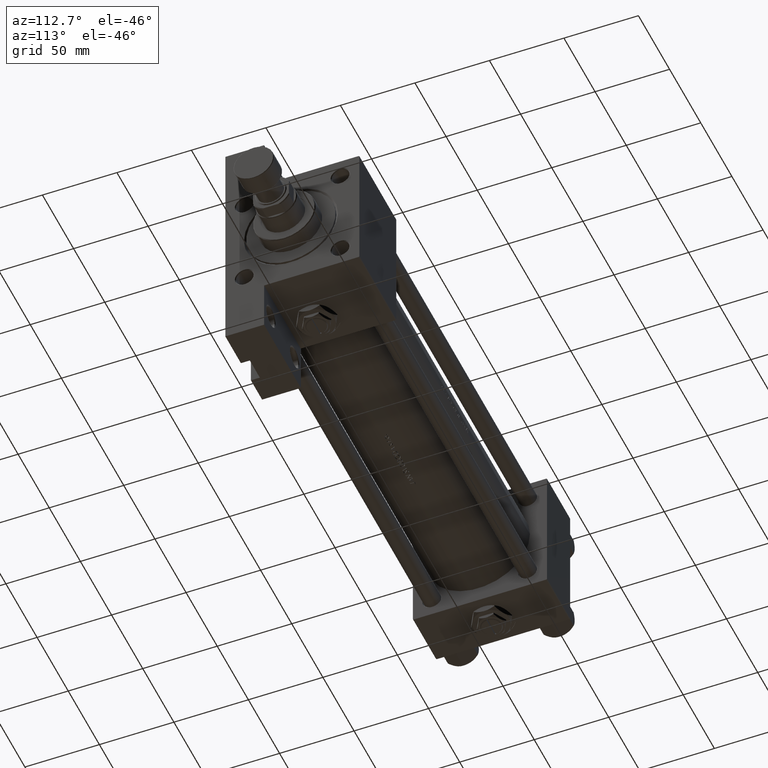
[diagram: clean part render]
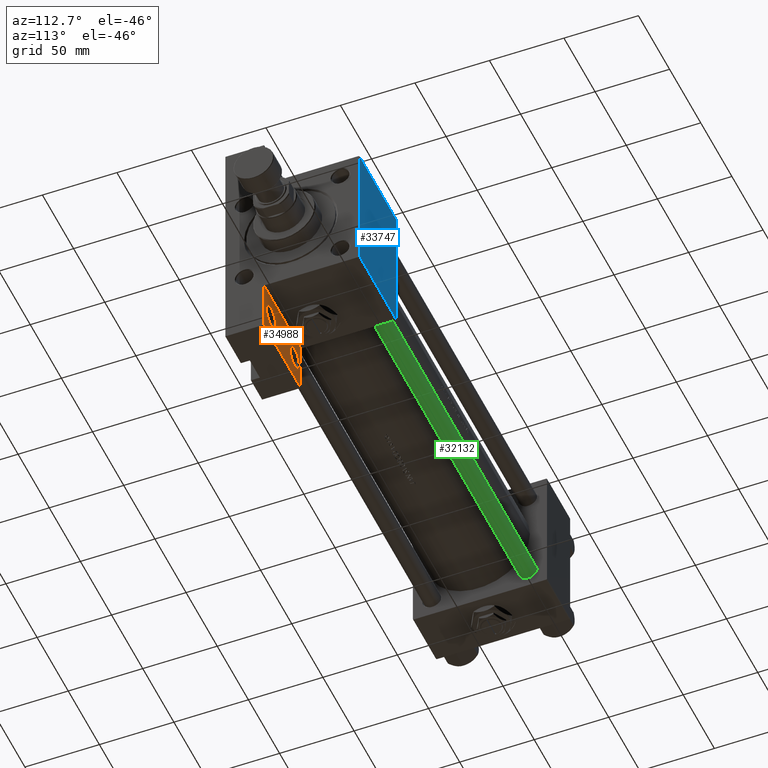
[diagram: same view with three faces highlighted in distinct colors, each labeled with its STEP entity id]
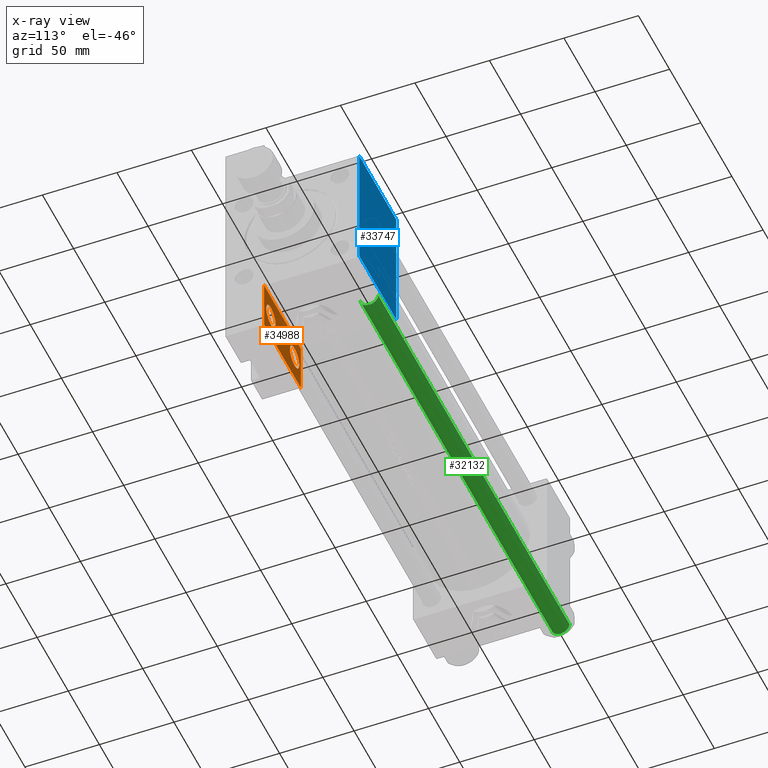
[diagram: x-ray of the same camera — body ghosted, the three highlighted faces saturated]
A machine part, auxiliary view with three faces highlighted in distinct colors.
The next image is the same camera in x-ray (body ghosted, the three faces saturated) — at least one of them is partly hidden behind the body in this view.
Their STEP definitions:

[orange] entity #34988 — the highlighted planar face has unit normal (0, 1, 0).
#86 = CARTESIAN_POINT ( 'NONE',  ( 278.9999999999999432, 79.99999999999995737, -19.00000000000000000 ) ) ;
#563 = EDGE_LOOP ( 'NONE', ( #20425, #5904 ) ) ;
#845 = VERTEX_POINT ( 'NONE', #42118 ) ;
#991 = EDGE_CURVE ( 'NONE', #11523, #37125, #22621, .T. ) ;
#2024 = DIRECTION ( 'NONE',  ( 0.000000000000000000, 0.000000000000000000, 1.000000000000000000 ) ) ;
#2047 = CARTESIAN_POINT ( 'NONE',  ( 326.9999999999999432, 62.00000000000000000, -19.00000000000000000 ) ) ;
#2672 = EDGE_CURVE ( 'NONE', #11731, #11315, #3400, .T. ) ;
#2769 = DIRECTION ( 'NONE',  ( 1.000000000000000000, 0.000000000000000000, 0.000000000000000000 ) ) ;
#2879 = EDGE_CURVE ( 'NONE', #43357, #31078, #6454, .T. ) ;
#3400 = LINE ( 'NONE', #41500, #29151 ) ;
#3595 = VECTOR ( 'NONE', #49797, 1000.000000000000000 ) ;
#4379 = EDGE_CURVE ( 'NONE', #4781, #845, #41717, .T. ) ;
#4781 = VERTEX_POINT ( 'NONE', #9927 ) ;
#5904 = ORIENTED_EDGE ( 'NONE', *, *, #2879, .T. ) ;
#6123 = LINE ( 'NONE', #22377, #27771 ) ;
#6454 = CIRCLE ( 'NONE', #7266, 7.499499999999992284 ) ;
#6478 = VECTOR ( 'NONE', #17371, 1000.000000000000000 ) ;
#6581 = DIRECTION ( 'NONE',  ( 1.000000000000000000, 0.000000000000000000, -0.000000000000000000 ) ) ;
#7266 = AXIS2_PLACEMENT_3D ( 'NONE', #33072, #13025, #44004 ) ;
#7539 = CARTESIAN_POINT ( 'NONE',  ( 334.4994999999999550, 62.00000000000000000, -19.00000000000000000 ) ) ;
#7785 = CARTESIAN_POINT ( 'NONE',  ( 281.5004999999999882, 62.00000000000002842, -19.00000000000000000 ) ) ;
#9927 = CARTESIAN_POINT ( 'NONE',  ( 337.9999999999999432, 79.99999999999998579, -19.00000000000000000 ) ) ;
#10382 = FACE_OUTER_BOUND ( 'NONE', #19868, .T. ) ;
#11315 = VERTEX_POINT ( 'NONE', #86 ) ;
#11523 = VERTEX_POINT ( 'NONE', #13274 ) ;
#11731 = VERTEX_POINT ( 'NONE', #19335 ) ;
#13025 = DIRECTION ( 'NONE',  ( -0.000000000000000000, -0.000000000000000000, -1.000000000000000000 ) ) ;
#13274 = CARTESIAN_POINT ( 'NONE',  ( 319.5004999999999882, 62.00000000000000000, -19.00000000000000000 ) ) ;
#14017 = CIRCLE ( 'NONE', #30256, 7.499499999999992284 ) ;
#14833 = ORIENTED_EDGE ( 'NONE', *, *, #26398, .F. ) ;
#15349 = AXIS2_PLACEMENT_3D ( 'NONE', #22084, #2024, #6581 ) ;
#16758 = EDGE_CURVE ( 'NONE', #31078, #43357, #14017, .T. ) ;
#17371 = DIRECTION ( 'NONE',  ( 0.000000000000000000, -1.000000000000000000, 0.000000000000000000 ) ) ;
#17477 = DIRECTION ( 'NONE',  ( 1.000000000000000000, 0.000000000000000000, 0.000000000000000000 ) ) ;
#17515 = ORIENTED_EDGE ( 'NONE', *, *, #4379, .F. ) ;
#17558 = DIRECTION ( 'NONE',  ( -1.000000000000000000, 1.411300455031978640E-15, -0.000000000000000000 ) ) ;
#18013 = CARTESIAN_POINT ( 'NONE',  ( 289.0000000000000000, 62.00000000000002842, -19.00000000000000000 ) ) ;
#18230 = EDGE_CURVE ( 'NONE', #11315, #4781, #34343, .T. ) ;
#18295 = DIRECTION ( 'NONE',  ( -0.000000000000000000, -0.000000000000000000, -1.000000000000000000 ) ) ;
#19335 = CARTESIAN_POINT ( 'NONE',  ( 278.9999999999999432, 45.00000000000001421, -18.99999999999997513 ) ) ;
#19868 = EDGE_LOOP ( 'NONE', ( #20016, #14833, #17515, #33597 ) ) ;
#20016 = ORIENTED_EDGE ( 'NONE', *, *, #2672, .F. ) ;
#20425 = ORIENTED_EDGE ( 'NONE', *, *, #16758, .T. ) ;
#22084 = CARTESIAN_POINT ( 'NONE',  ( 0.000000000000000000, 0.000000000000000000, -19.00000000000000000 ) ) ;
#22377 = CARTESIAN_POINT ( 'NONE',  ( 278.9999999999999432, 45.00000000000001421, -19.00000000000000000 ) ) ;
#22425 = CARTESIAN_POINT ( 'NONE',  ( 337.9999999999999432, 79.99999999999998579, -19.00000000000000000 ) ) ;
#22621 = CIRCLE ( 'NONE', #46101, 7.499499999999992284 ) ;
#26398 = EDGE_CURVE ( 'NONE', #845, #11731, #6123, .T. ) ;
#27771 = VECTOR ( 'NONE', #17558, 1000.000000000000000 ) ;
#28673 = DIRECTION ( 'NONE',  ( -0.000000000000000000, -0.000000000000000000, -1.000000000000000000 ) ) ;
#29151 = VECTOR ( 'NONE', #49844, 1000.000000000000000 ) ;
#30256 = AXIS2_PLACEMENT_3D ( 'NONE', #18013, #37548, #2769 ) ;
#30523 = CARTESIAN_POINT ( 'NONE',  ( 278.9999999999999432, 79.99999999999995737, -19.00000000000000000 ) ) ;
#30789 = AXIS2_PLACEMENT_3D ( 'NONE', #2047, #18295, #33021 ) ;
#31078 = VERTEX_POINT ( 'NONE', #40070 ) ;
#33021 = DIRECTION ( 'NONE',  ( 1.000000000000000000, 0.000000000000000000, 0.000000000000000000 ) ) ;
#33072 = CARTESIAN_POINT ( 'NONE',  ( 289.0000000000000000, 62.00000000000002842, -19.00000000000000000 ) ) ;
#33262 = CIRCLE ( 'NONE', #30789, 7.499499999999992284 ) ;
#33597 = ORIENTED_EDGE ( 'NONE', *, *, #18230, .F. ) ;
#34343 = LINE ( 'NONE', #30523, #3595 ) ;
#34988 = ADVANCED_FACE ( 'NONE', ( #40608, #45155, #10382 ), #37046, .T. ) ;
#36273 = CARTESIAN_POINT ( 'NONE',  ( 326.9999999999999432, 62.00000000000000000, -19.00000000000000000 ) ) ;
#37046 = PLANE ( 'NONE',  #15349 ) ;
#37125 = VERTEX_POINT ( 'NONE', #7539 ) ;
#37548 = DIRECTION ( 'NONE',  ( -0.000000000000000000, -0.000000000000000000, -1.000000000000000000 ) ) ;
#40070 = CARTESIAN_POINT ( 'NONE',  ( 296.4994999999999550, 62.00000000000002842, -19.00000000000000000 ) ) ;
#40492 = EDGE_CURVE ( 'NONE', #37125, #11523, #33262, .T. ) ;
#40607 = EDGE_LOOP ( 'NONE', ( #49125, #46068 ) ) ;
#40608 = FACE_BOUND ( 'NONE', #40607, .T. ) ;
#41500 = CARTESIAN_POINT ( 'NONE',  ( 278.9999999999999432, 79.99999999999995737, -19.00000000000000000 ) ) ;
#41717 = LINE ( 'NONE', #22425, #6478 ) ;
#42118 = CARTESIAN_POINT ( 'NONE',  ( 337.9999999999999432, 44.99999999999992895, -19.00000000000000000 ) ) ;
#43357 = VERTEX_POINT ( 'NONE', #7785 ) ;
#44004 = DIRECTION ( 'NONE',  ( 1.000000000000000000, 0.000000000000000000, 0.000000000000000000 ) ) ;
#45155 = FACE_BOUND ( 'NONE', #563, .T. ) ;
#46068 = ORIENTED_EDGE ( 'NONE', *, *, #991, .T. ) ;
#46101 = AXIS2_PLACEMENT_3D ( 'NONE', #36273, #28673, #17477 ) ;
#49125 = ORIENTED_EDGE ( 'NONE', *, *, #40492, .T. ) ;
#49797 = DIRECTION ( 'NONE',  ( 1.000000000000000000, 4.704334850106595794E-16, 0.000000000000000000 ) ) ;
#49844 = DIRECTION ( 'NONE',  ( -0.000000000000000000, 1.000000000000000000, -0.000000000000000000 ) ) ;

[blue] entity #33747 — the highlighted planar face has unit normal (0, -1, -0).
#4385 = PLANE ( 'NONE',  #27472 ) ;
#4681 = DIRECTION ( 'NONE',  ( 0.000000000000000000, -1.000000000000000000, -1.541976423090495140E-16 ) ) ;
#5056 = VECTOR ( 'NONE', #41458, 1000.000000000000000 ) ;
#9570 = CARTESIAN_POINT ( 'NONE',  ( 278.9999999999999432, -44.49999999999997158, 44.99999999999998579 ) ) ;
#13838 = VECTOR ( 'NONE', #14262, 1000.000000000000000 ) ;
#14000 = CARTESIAN_POINT ( 'NONE',  ( 337.9999999999999432, -44.49999999999997158, 44.99999999999998579 ) ) ;
#14262 = DIRECTION ( 'NONE',  ( 0.000000000000000000, -1.000000000000000000, -1.541976423090495140E-16 ) ) ;
#14300 = CARTESIAN_POINT ( 'NONE',  ( 278.9999999999999432, 44.49999999999995737, 45.00000000000000000 ) ) ;
#15550 = LINE ( 'NONE', #25988, #5056 ) ;
#15623 = CARTESIAN_POINT ( 'NONE',  ( 278.9999999999999432, 45.00000000000001421, 45.00000000000000000 ) ) ;
#17864 = VERTEX_POINT ( 'NONE', #9570 ) ;
#19665 = EDGE_LOOP ( 'NONE', ( #40872, #44001, #22271, #39201 ) ) ;
#19890 = CARTESIAN_POINT ( 'NONE',  ( 337.9999999999999432, 45.00000000000001421, 45.00000000000000000 ) ) ;
#20106 = CARTESIAN_POINT ( 'NONE',  ( 337.9999999999999432, -44.50000000000000000, 44.99999999999998579 ) ) ;
#21483 = EDGE_CURVE ( 'NONE', #38177, #17864, #35929, .T. ) ;
#22271 = ORIENTED_EDGE ( 'NONE', *, *, #21483, .T. ) ;
#23238 = EDGE_CURVE ( 'NONE', #41487, #33069, #26432, .T. ) ;
#24164 = DIRECTION ( 'NONE',  ( 1.000000000000000000, 0.000000000000000000, 0.000000000000000000 ) ) ;
#25988 = CARTESIAN_POINT ( 'NONE',  ( 278.9999999999999432, 44.49999999999995737, 45.00000000000000000 ) ) ;
#26432 = LINE ( 'NONE', #41413, #13838 ) ;
#27472 = AXIS2_PLACEMENT_3D ( 'NONE', #19890, #35366, #36122 ) ;
#29167 = VECTOR ( 'NONE', #24164, 1000.000000000000000 ) ;
#30175 = CARTESIAN_POINT ( 'NONE',  ( 337.9999999999999432, 44.49999999999995737, 45.00000000000000000 ) ) ;
#32063 = FACE_OUTER_BOUND ( 'NONE', #19665, .T. ) ;
#33069 = VERTEX_POINT ( 'NONE', #14000 ) ;
#33747 = ADVANCED_FACE ( 'NONE', ( #32063 ), #4385, .F. ) ;
#35087 = LINE ( 'NONE', #20106, #29167 ) ;
#35366 = DIRECTION ( 'NONE',  ( 0.000000000000000000, 1.541976423090495387E-16, -1.000000000000000000 ) ) ;
#35924 = EDGE_CURVE ( 'NONE', #17864, #33069, #35087, .T. ) ;
#35929 = LINE ( 'NONE', #15623, #37398 ) ;
#36122 = DIRECTION ( 'NONE',  ( 0.000000000000000000, 1.000000000000000000, 1.541976423090495387E-16 ) ) ;
#37398 = VECTOR ( 'NONE', #4681, 1000.000000000000000 ) ;
#38177 = VERTEX_POINT ( 'NONE', #14300 ) ;
#39201 = ORIENTED_EDGE ( 'NONE', *, *, #35924, .T. ) ;
#40872 = ORIENTED_EDGE ( 'NONE', *, *, #23238, .F. ) ;
#41413 = CARTESIAN_POINT ( 'NONE',  ( 337.9999999999999432, 45.00000000000001421, 45.00000000000000000 ) ) ;
#41458 = DIRECTION ( 'NONE',  ( -1.000000000000000000, 0.000000000000000000, 0.000000000000000000 ) ) ;
#41487 = VERTEX_POINT ( 'NONE', #30175 ) ;
#44001 = ORIENTED_EDGE ( 'NONE', *, *, #45690, .T. ) ;
#45690 = EDGE_CURVE ( 'NONE', #41487, #38177, #15550, .T. ) ;

[green] entity #32132 — the highlighted cylindrical surface (edge-blend (fillet) strip) has radius 6 mm, axis along (-1, -0, 0).
#918 = CIRCLE ( 'NONE', #42236, 6.000000000000000888 ) ;
#2475 = VECTOR ( 'NONE', #41466, 1000.000000000000000 ) ;
#3539 = CARTESIAN_POINT ( 'NONE',  ( 0.000000000000000000, 0.000000000000000000, 0.5000000000000559552 ) ) ;
#4389 = EDGE_CURVE ( 'NONE', #41078, #49005, #41208, .T. ) ;
#4864 = CARTESIAN_POINT ( 'NONE',  ( -6.000000000000000888, 0.000000000000000000, 307.4999999999999432 ) ) ;
#4987 = AXIS2_PLACEMENT_3D ( 'NONE', #37932, #44803, #48338 ) ;
#6306 = LINE ( 'NONE', #29936, #11581 ) ;
#6631 = ORIENTED_EDGE ( 'NONE', *, *, #13541, .T. ) ;
#6817 = DIRECTION ( 'NONE',  ( -0.000000000000000000, -0.000000000000000000, -1.000000000000000000 ) ) ;
#8280 = DIRECTION ( 'NONE',  ( -1.000000000000000000, 0.000000000000000000, 0.000000000000000000 ) ) ;
#11581 = VECTOR ( 'NONE', #6817, 1000.000000000000000 ) ;
#11603 = FACE_OUTER_BOUND ( 'NONE', #27268, .T. ) ;
#13541 = EDGE_CURVE ( 'NONE', #35459, #41078, #43905, .T. ) ;
#16660 = EDGE_CURVE ( 'NONE', #35459, #36886, #6306, .T. ) ;
#21715 = AXIS2_PLACEMENT_3D ( 'NONE', #35216, #23281, #8280 ) ;
#22355 = DIRECTION ( 'NONE',  ( 1.000000000000000000, 0.000000000000000000, 0.000000000000000000 ) ) ;
#23281 = DIRECTION ( 'NONE',  ( -0.000000000000000000, -0.000000000000000000, -1.000000000000000000 ) ) ;
#23753 = ORIENTED_EDGE ( 'NONE', *, *, #16660, .F. ) ;
#24402 = EDGE_CURVE ( 'NONE', #49005, #36886, #918, .T. ) ;
#25105 = CARTESIAN_POINT ( 'NONE',  ( 6.000000000000000888, 7.347880794884120722E-16, 0.5000000000000559552 ) ) ;
#27268 = EDGE_LOOP ( 'NONE', ( #23753, #6631, #39807, #35997 ) ) ;
#29936 = CARTESIAN_POINT ( 'NONE',  ( 6.000000000000000888, 7.347880794884120722E-16, 308.0000000000000000 ) ) ;
#32132 = ADVANCED_FACE ( 'NONE', ( #11603 ), #39508, .T. ) ;
#35216 = CARTESIAN_POINT ( 'NONE',  ( 0.000000000000000000, 0.000000000000000000, 308.0000000000000000 ) ) ;
#35459 = VERTEX_POINT ( 'NONE', #37197 ) ;
#35997 = ORIENTED_EDGE ( 'NONE', *, *, #24402, .T. ) ;
#36886 = VERTEX_POINT ( 'NONE', #25105 ) ;
#37197 = CARTESIAN_POINT ( 'NONE',  ( 6.000000000000000888, 7.347880794884120722E-16, 307.4999999999999432 ) ) ;
#37932 = CARTESIAN_POINT ( 'NONE',  ( 0.000000000000000000, 0.000000000000000000, 307.4999999999999432 ) ) ;
#39508 = CYLINDRICAL_SURFACE ( 'NONE', #21715, 6.000000000000000888 ) ;
#39807 = ORIENTED_EDGE ( 'NONE', *, *, #4389, .T. ) ;
#41078 = VERTEX_POINT ( 'NONE', #4864 ) ;
#41158 = CARTESIAN_POINT ( 'NONE',  ( -6.000000000000000888, 0.000000000000000000, 0.5000000000000559552 ) ) ;
#41208 = LINE ( 'NONE', #45258, #2475 ) ;
#41466 = DIRECTION ( 'NONE',  ( -0.000000000000000000, -0.000000000000000000, -1.000000000000000000 ) ) ;
#42236 = AXIS2_PLACEMENT_3D ( 'NONE', #3539, #46166, #22355 ) ;
#43905 = CIRCLE ( 'NONE', #4987, 6.000000000000000888 ) ;
#44803 = DIRECTION ( 'NONE',  ( 0.000000000000000000, 0.000000000000000000, -1.000000000000000000 ) ) ;
#45258 = CARTESIAN_POINT ( 'NONE',  ( -6.000000000000000888, 0.000000000000000000, 308.0000000000000000 ) ) ;
#46166 = DIRECTION ( 'NONE',  ( -0.000000000000000000, -0.000000000000000000, 1.000000000000000000 ) ) ;
#48338 = DIRECTION ( 'NONE',  ( 1.000000000000000000, 0.000000000000000000, 0.000000000000000000 ) ) ;
#49005 = VERTEX_POINT ( 'NONE', #41158 ) ;